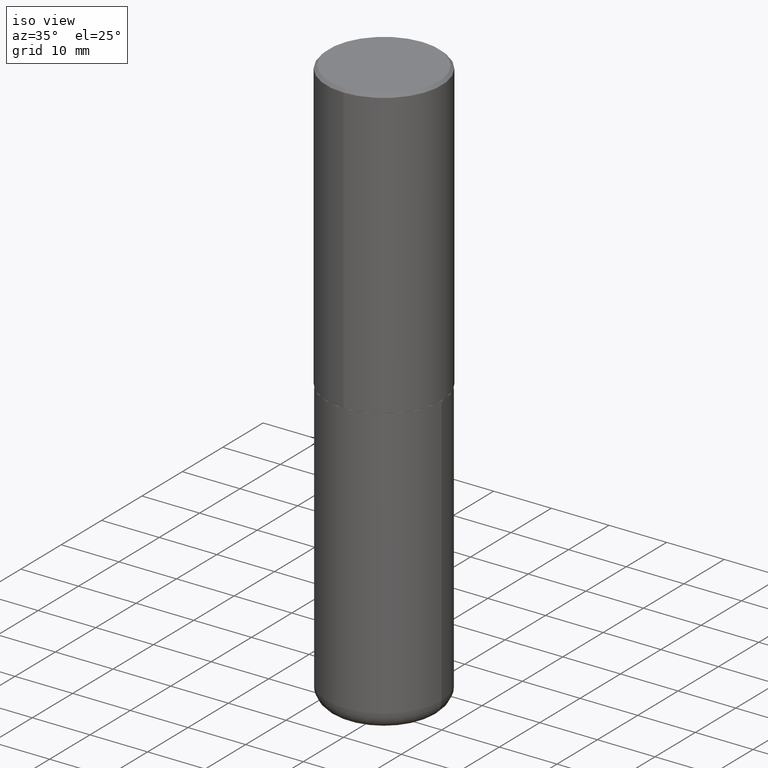
[diagram: clean part render]
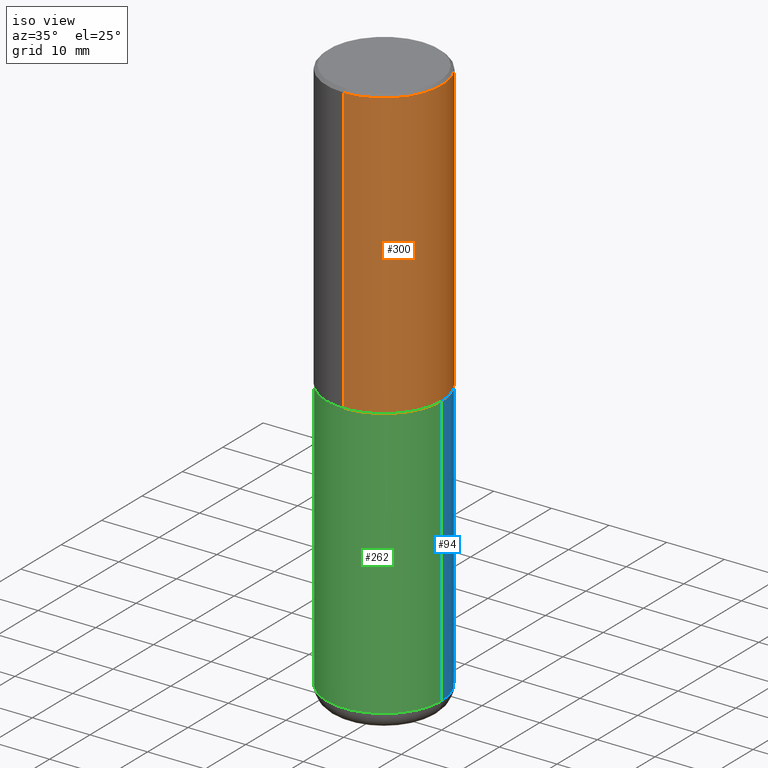
[diagram: same view with three faces highlighted in distinct colors, each labeled with its STEP entity id]
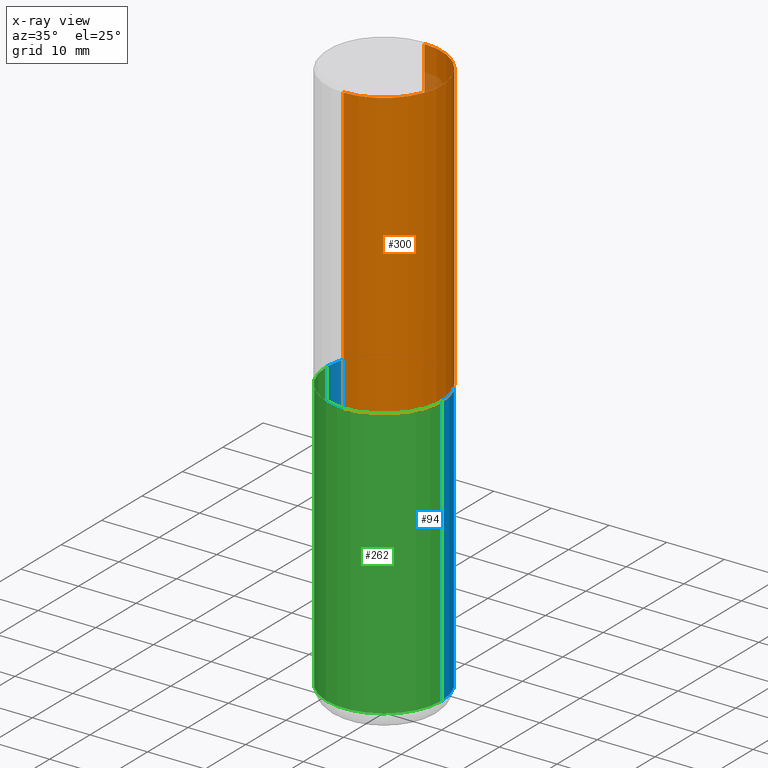
[diagram: x-ray of the same camera — body ghosted, the three highlighted faces saturated]
A machine part, iso view with three faces highlighted in distinct colors.
The next image is the same camera in x-ray (body ghosted, the three faces saturated) — at least one of them is partly hidden behind the body in this view.
Their STEP definitions:

[orange] entity #300 — the highlighted cylindrical surface (partial cylindrical patch) has radius 10 mm, axis along (-0, 0, 1).
#7 = DIRECTION ( 'NONE',  ( -2.447902336346030930E-29, 3.487996385144809755E-15, 1.000000000000000000 ) ) ;
#14 = CARTESIAN_POINT ( 'NONE',  ( 2.797406750687515181E-15, 0.3937000000000001609, -1.373224176831512065E-15 ) ) ;
#30 = CARTESIAN_POINT ( 'NONE',  ( 2.797406750687540030E-15, 0.3936999999999934441, -1.967500000000001359 ) ) ;
#45 = CARTESIAN_POINT ( 'NONE',  ( 4.816247846760815671E-29, -6.862632887772413316E-15, -1.967500000000000027 ) ) ;
#62 = CARTESIAN_POINT ( 'NONE',  ( -2.749192406205084005E-15, -0.3937000000000001609, 1.373224176831512065E-15 ) ) ;
#77 = DIRECTION ( 'NONE',  ( -6.982962677686265133E-15, -1.000000000000000000, 3.491137977679279424E-15 ) ) ;
#79 = VERTEX_POINT ( 'NONE', #358 ) ;
#86 = VERTEX_POINT ( 'NONE', #294 ) ;
#108 = CARTESIAN_POINT ( 'NONE',  ( 4.895804672692082949E-31, -6.975992770289649092E-17, -0.02000000000000008715 ) ) ;
#117 = CYLINDRICAL_SURFACE ( 'NONE', #339, 0.3937000000000001609 ) ;
#146 = DIRECTION ( 'NONE',  ( -6.982962677686265922E-15, -1.000000000000000000, 3.487996385144809360E-15 ) ) ;
#160 = DIRECTION ( 'NONE',  ( -2.447902336346030930E-29, 3.487996385144809360E-15, 1.000000000000000000 ) ) ;
#182 = VERTEX_POINT ( 'NONE', #30 ) ;
#185 = DIRECTION ( 'NONE',  ( -2.447902336346030930E-29, 3.487996385144809755E-15, 1.000000000000000000 ) ) ;
#193 = CIRCLE ( 'NONE', #384, 0.3937000000000002720 ) ;
#202 = AXIS2_PLACEMENT_3D ( 'NONE', #108, #7, #77 ) ;
#203 = VECTOR ( 'NONE', #160, 39.37007874015748143 ) ;
#211 = ORIENTED_EDGE ( 'NONE', *, *, #237, .F. ) ;
#215 = CARTESIAN_POINT ( 'NONE',  ( 0.000000000000000000, 0.000000000000000000, 0.000000000000000000 ) ) ;
#222 = LINE ( 'NONE', #62, #203 ) ;
#237 = EDGE_CURVE ( 'NONE', #86, #327, #383, .T. ) ;
#249 = ORIENTED_EDGE ( 'NONE', *, *, #314, .T. ) ;
#274 = CARTESIAN_POINT ( 'NONE',  ( 2.749192406205083217E-15, 0.3936999999999999389, -0.02000000000000146105 ) ) ;
#294 = CARTESIAN_POINT ( 'NONE',  ( -2.700978061722651252E-15, -0.3937000000000001054, -0.01999999999999870978 ) ) ;
#297 = VECTOR ( 'NONE', #407, 39.37007874015748143 ) ;
#299 = FACE_OUTER_BOUND ( 'NONE', #338, .T. ) ;
#300 = ADVANCED_FACE ( 'NONE', ( #299 ), #117, .T. ) ;
#304 = ORIENTED_EDGE ( 'NONE', *, *, #404, .F. ) ;
#305 = LINE ( 'NONE', #14, #297 ) ;
#314 = EDGE_CURVE ( 'NONE', #182, #327, #305, .T. ) ;
#327 = VERTEX_POINT ( 'NONE', #274 ) ;
#338 = EDGE_LOOP ( 'NONE', ( #374, #249, #211, #304 ) ) ;
#339 = AXIS2_PLACEMENT_3D ( 'NONE', #215, #185, #146 ) ;
#358 = CARTESIAN_POINT ( 'NONE',  ( -2.749192406205036674E-15, -0.3937000000000070998, -1.967499999999998694 ) ) ;
#374 = ORIENTED_EDGE ( 'NONE', *, *, #390, .T. ) ;
#383 = CIRCLE ( 'NONE', #202, 0.3937000000000000499 ) ;
#384 = AXIS2_PLACEMENT_3D ( 'NONE', #45, #396, #399 ) ;
#390 = EDGE_CURVE ( 'NONE', #79, #182, #193, .T. ) ;
#396 = DIRECTION ( 'NONE',  ( -2.447902336346030930E-29, 3.487996385144809755E-15, 1.000000000000000000 ) ) ;
#399 = DIRECTION ( 'NONE',  ( -6.982962677686265922E-15, -1.000000000000000000, 3.469453890861393601E-15 ) ) ;
#404 = EDGE_CURVE ( 'NONE', #79, #86, #222, .T. ) ;
#407 = DIRECTION ( 'NONE',  ( -2.447902336346030930E-29, 3.487996385144809360E-15, 1.000000000000000000 ) ) ;

[blue] entity #94 — the highlighted cylindrical surface (partial cylindrical patch) has radius 10 mm, axis along (-0, 0, 1).
#1 = CARTESIAN_POINT ( 'NONE',  ( 0.3937000000000000499, -2.749192406205083217E-15, 1.919750796630860172E-29 ) ) ;
#6 = ORIENTED_EDGE ( 'NONE', *, *, #310, .T. ) ;
#13 = VERTEX_POINT ( 'NONE', #410 ) ;
#18 = EDGE_LOOP ( 'NONE', ( #6, #20, #51, #194 ) ) ;
#20 = ORIENTED_EDGE ( 'NONE', *, *, #28, .T. ) ;
#28 = EDGE_CURVE ( 'NONE', #332, #13, #126, .T. ) ;
#36 = CARTESIAN_POINT ( 'NONE',  ( 0.000000000000000000, 0.000000000000000000, 0.000000000000000000 ) ) ;
#38 = AXIS2_PLACEMENT_3D ( 'NONE', #335, #269, #83 ) ;
#41 = VERTEX_POINT ( 'NONE', #214 ) ;
#51 = ORIENTED_EDGE ( 'NONE', *, *, #122, .F. ) ;
#57 = VERTEX_POINT ( 'NONE', #329 ) ;
#71 = LINE ( 'NONE', #1, #198 ) ;
#83 = DIRECTION ( 'NONE',  ( 1.000000000000000000, -6.982962677686267499E-15, 0.000000000000000000 ) ) ;
#87 = CARTESIAN_POINT ( 'NONE',  ( -0.3937000000000000499, -1.053621133422057529E-14, -3.818900000000000183 ) ) ;
#92 = DIRECTION ( 'NONE',  ( -2.445468806185136877E-29, 3.491481338843145188E-15, 1.000000000000000000 ) ) ;
#94 = ADVANCED_FACE ( 'NONE', ( #414 ), #131, .T. ) ;
#97 = EDGE_CURVE ( 'NONE', #57, #41, #71, .T. ) ;
#106 = DIRECTION ( 'NONE',  ( 1.000000000000000000, -6.982962677686265133E-15, 0.000000000000000000 ) ) ;
#122 = EDGE_CURVE ( 'NONE', #41, #13, #147, .T. ) ;
#126 = LINE ( 'NONE', #247, #352 ) ;
#131 = CYLINDRICAL_SURFACE ( 'NONE', #318, 0.3937000000000000499 ) ;
#147 = CIRCLE ( 'NONE', #387, 0.3937000000000000499 ) ;
#194 = ORIENTED_EDGE ( 'NONE', *, *, #97, .F. ) ;
#198 = VECTOR ( 'NONE', #264, 39.37007874015748143 ) ;
#200 = DIRECTION ( 'NONE',  ( -2.445468806185136597E-29, 3.491481338843145583E-15, 1.000000000000000000 ) ) ;
#214 = CARTESIAN_POINT ( 'NONE',  ( 0.3937000000000000499, -9.622173421717814924E-15, -1.968500000000000139 ) ) ;
#247 = CARTESIAN_POINT ( 'NONE',  ( -0.3937000000000000499, 2.797406750687514786E-15, -1.936584745033356735E-29 ) ) ;
#258 = DIRECTION ( 'NONE',  ( -2.445468806185136597E-29, 3.491481338843145583E-15, 1.000000000000000000 ) ) ;
#259 = CIRCLE ( 'NONE', #38, 0.3937000000000000499 ) ;
#264 = DIRECTION ( 'NONE',  ( -2.445468806185136877E-29, 3.491481338843145188E-15, 1.000000000000000000 ) ) ;
#269 = DIRECTION ( 'NONE',  ( -2.445468806185136597E-29, 3.491481338843145583E-15, 1.000000000000000000 ) ) ;
#289 = DIRECTION ( 'NONE',  ( 1.000000000000000000, -6.982962677686265922E-15, 4.876176775795935793E-29 ) ) ;
#310 = EDGE_CURVE ( 'NONE', #57, #332, #259, .T. ) ;
#318 = AXIS2_PLACEMENT_3D ( 'NONE', #36, #200, #289 ) ;
#329 = CARTESIAN_POINT ( 'NONE',  ( 0.3937000000000000499, -1.608281049111317408E-14, -3.818900000000000183 ) ) ;
#332 = VERTEX_POINT ( 'NONE', #87 ) ;
#335 = CARTESIAN_POINT ( 'NONE',  ( 9.339000823940418668E-29, -1.333361808490808928E-14, -3.818900000000000183 ) ) ;
#352 = VECTOR ( 'NONE', #92, 39.37007874015748143 ) ;
#356 = CARTESIAN_POINT ( 'NONE',  ( 4.813905344975441835E-29, -6.872981015512731707E-15, -1.968500000000000139 ) ) ;
#387 = AXIS2_PLACEMENT_3D ( 'NONE', #356, #258, #106 ) ;
#410 = CARTESIAN_POINT ( 'NONE',  ( -0.3937000000000000499, -7.305892799522895709E-15, -1.968500000000000139 ) ) ;
#414 = FACE_OUTER_BOUND ( 'NONE', #18, .T. ) ;

[green] entity #262 — the highlighted cylindrical surface (partial cylindrical patch) has radius 10 mm, axis along (-0, 0, 1).
#1 = CARTESIAN_POINT ( 'NONE',  ( 0.3937000000000000499, -2.749192406205083217E-15, 1.919750796630860172E-29 ) ) ;
#5 = CARTESIAN_POINT ( 'NONE',  ( 4.813905344975441835E-29, -6.872981015512731707E-15, -1.968500000000000139 ) ) ;
#13 = VERTEX_POINT ( 'NONE', #410 ) ;
#28 = EDGE_CURVE ( 'NONE', #332, #13, #126, .T. ) ;
#41 = VERTEX_POINT ( 'NONE', #214 ) ;
#46 = EDGE_CURVE ( 'NONE', #332, #57, #312, .T. ) ;
#55 = DIRECTION ( 'NONE',  ( -2.445468806185136597E-29, 3.491481338843145583E-15, 1.000000000000000000 ) ) ;
#57 = VERTEX_POINT ( 'NONE', #329 ) ;
#71 = LINE ( 'NONE', #1, #198 ) ;
#87 = CARTESIAN_POINT ( 'NONE',  ( -0.3937000000000000499, -1.053621133422057529E-14, -3.818900000000000183 ) ) ;
#92 = DIRECTION ( 'NONE',  ( -2.445468806185136877E-29, 3.491481338843145188E-15, 1.000000000000000000 ) ) ;
#97 = EDGE_CURVE ( 'NONE', #57, #41, #71, .T. ) ;
#109 = AXIS2_PLACEMENT_3D ( 'NONE', #411, #128, #223 ) ;
#119 = CARTESIAN_POINT ( 'NONE',  ( 0.000000000000000000, 0.000000000000000000, 0.000000000000000000 ) ) ;
#126 = LINE ( 'NONE', #247, #352 ) ;
#128 = DIRECTION ( 'NONE',  ( -2.445468806185136597E-29, 3.491481338843145583E-15, 1.000000000000000000 ) ) ;
#149 = EDGE_LOOP ( 'NONE', ( #176, #239, #188, #360 ) ) ;
#176 = ORIENTED_EDGE ( 'NONE', *, *, #28, .F. ) ;
#188 = ORIENTED_EDGE ( 'NONE', *, *, #97, .T. ) ;
#192 = CIRCLE ( 'NONE', #324, 0.3937000000000000499 ) ;
#198 = VECTOR ( 'NONE', #264, 39.37007874015748143 ) ;
#209 = DIRECTION ( 'NONE',  ( 1.000000000000000000, -6.982962677686265922E-15, 4.876176775795935793E-29 ) ) ;
#214 = CARTESIAN_POINT ( 'NONE',  ( 0.3937000000000000499, -9.622173421717814924E-15, -1.968500000000000139 ) ) ;
#223 = DIRECTION ( 'NONE',  ( 1.000000000000000000, -6.982962677686267499E-15, 0.000000000000000000 ) ) ;
#235 = EDGE_CURVE ( 'NONE', #13, #41, #192, .T. ) ;
#239 = ORIENTED_EDGE ( 'NONE', *, *, #46, .T. ) ;
#242 = CYLINDRICAL_SURFACE ( 'NONE', #296, 0.3937000000000000499 ) ;
#247 = CARTESIAN_POINT ( 'NONE',  ( -0.3937000000000000499, 2.797406750687514786E-15, -1.936584745033356735E-29 ) ) ;
#262 = ADVANCED_FACE ( 'NONE', ( #359 ), #242, .T. ) ;
#263 = DIRECTION ( 'NONE',  ( -2.445468806185136597E-29, 3.491481338843145583E-15, 1.000000000000000000 ) ) ;
#264 = DIRECTION ( 'NONE',  ( -2.445468806185136877E-29, 3.491481338843145188E-15, 1.000000000000000000 ) ) ;
#296 = AXIS2_PLACEMENT_3D ( 'NONE', #119, #55, #209 ) ;
#312 = CIRCLE ( 'NONE', #109, 0.3937000000000000499 ) ;
#324 = AXIS2_PLACEMENT_3D ( 'NONE', #5, #263, #393 ) ;
#329 = CARTESIAN_POINT ( 'NONE',  ( 0.3937000000000000499, -1.608281049111317408E-14, -3.818900000000000183 ) ) ;
#332 = VERTEX_POINT ( 'NONE', #87 ) ;
#352 = VECTOR ( 'NONE', #92, 39.37007874015748143 ) ;
#359 = FACE_OUTER_BOUND ( 'NONE', #149, .T. ) ;
#360 = ORIENTED_EDGE ( 'NONE', *, *, #235, .F. ) ;
#393 = DIRECTION ( 'NONE',  ( 1.000000000000000000, -6.982962677686265133E-15, 0.000000000000000000 ) ) ;
#410 = CARTESIAN_POINT ( 'NONE',  ( -0.3937000000000000499, -7.305892799522895709E-15, -1.968500000000000139 ) ) ;
#411 = CARTESIAN_POINT ( 'NONE',  ( 9.339000823940418668E-29, -1.333361808490808928E-14, -3.818900000000000183 ) ) ;